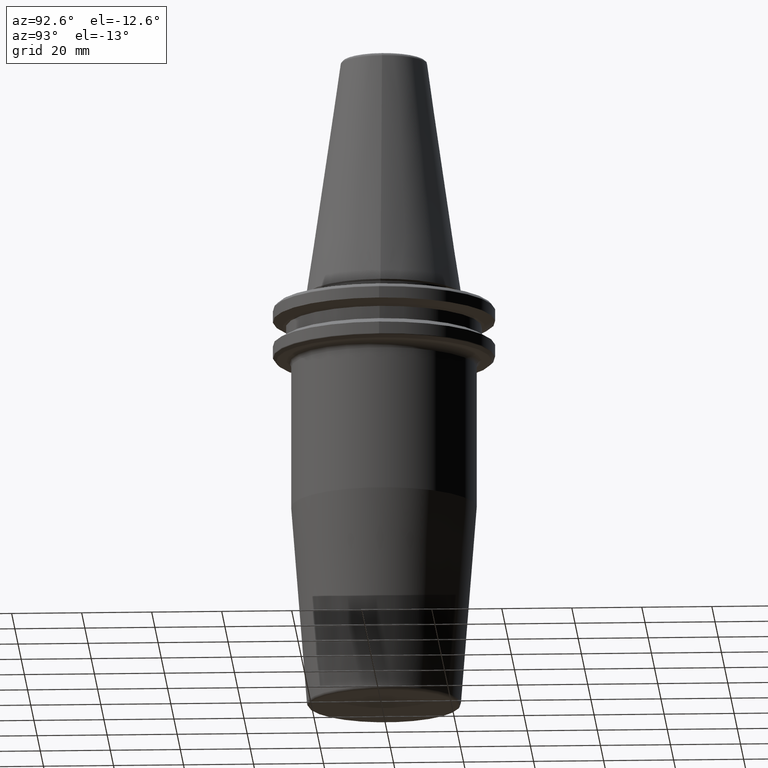
[diagram: clean part render]
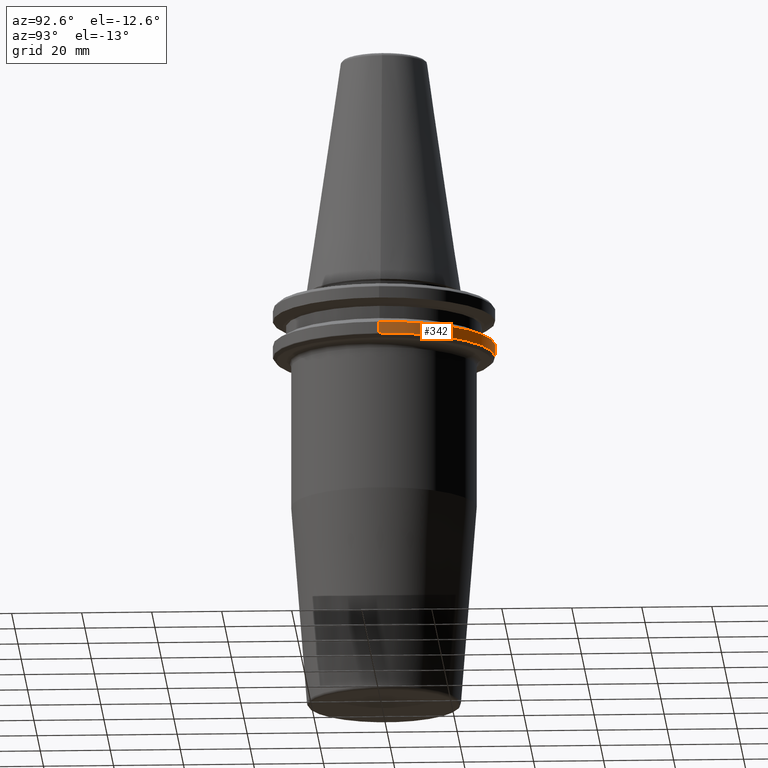
[diagram: same view with one face highlighted and labeled with its STEP entity id]
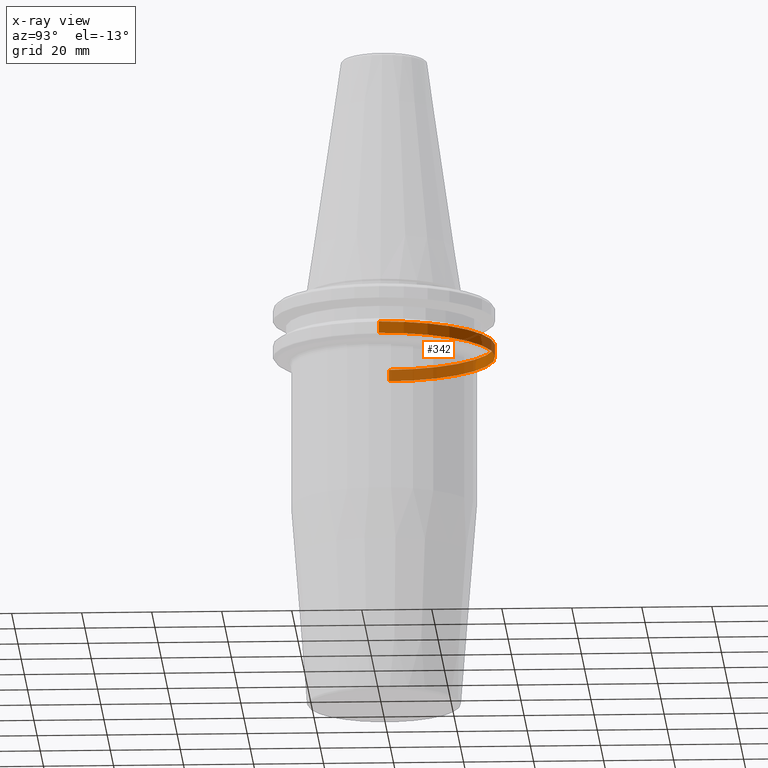
[diagram: x-ray of the same camera — body ghosted, the highlighted face saturated]
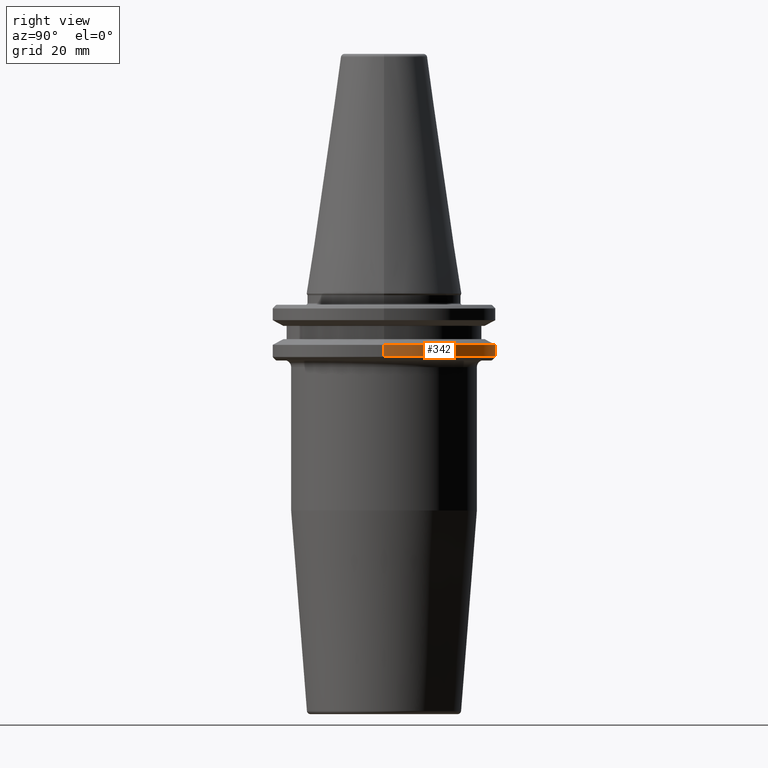
[diagram: same view with one face highlighted and labeled with its STEP entity id]
A machine part, auxiliary view. The second image highlights one B-rep face of the part: STEP entity #342.
The next image is the same camera in x-ray: the body ghosted, the highlighted face saturated — about 39% of this face is hidden behind the body in this view.
A second angle (right view) of the same face is appended — the face is thin or edge-on in the first view.
In plain terms, the highlighted cylindrical surface (partial cylindrical patch) has radius 31.75 mm, axis along (-0, -0, 1).
Its self-contained STEP definition (entity closure, byte-faithful):
#40 = CIRCLE ( 'NONE', #934, 31.75000000000000000 ) ;
#48 = DIRECTION ( 'NONE',  ( -0.0000000000000000000, -0.0000000000000000000, 1.000000000000000000 ) ) ;
#128 = AXIS2_PLACEMENT_3D ( 'NONE', #265, #938, #537 ) ;
#265 = CARTESIAN_POINT ( 'NONE',  ( 0.0000000000000000000, 0.0000000000000000000, 113.5216080541959500 ) ) ;
#276 = DIRECTION ( 'NONE',  ( -0.0000000000000000000, -0.0000000000000000000, 1.000000000000000000 ) ) ;
#314 = ORIENTED_EDGE ( 'NONE', *, *, #571, .F. ) ;
#342 = ADVANCED_FACE ( 'NONE', ( #807 ), #1027, .T. ) ;
#358 = CIRCLE ( 'NONE', #613, 31.75000000000000000 ) ;
#388 = DIRECTION ( 'NONE',  ( 1.000000000000000000, 0.0000000000000000000, 0.0000000000000000000 ) ) ;
#394 = VECTOR ( 'NONE', #276, 1000.000000000000000 ) ;
#469 = DIRECTION ( 'NONE',  ( 1.000000000000000000, 0.0000000000000000000, 0.0000000000000000000 ) ) ;
#514 = EDGE_CURVE ( 'NONE', #720, #1136, #649, .T. ) ;
#535 = EDGE_CURVE ( 'NONE', #579, #1090, #1142, .T. ) ;
#537 = DIRECTION ( 'NONE',  ( 1.000000000000000000, 0.0000000000000000000, 0.0000000000000000000 ) ) ;
#540 = EDGE_CURVE ( 'NONE', #720, #579, #358, .T. ) ;
#571 = EDGE_CURVE ( 'NONE', #1136, #1090, #40, .T. ) ;
#579 = VERTEX_POINT ( 'NONE', #986 ) ;
#613 = AXIS2_PLACEMENT_3D ( 'NONE', #955, #1218, #469 ) ;
#649 = LINE ( 'NONE', #690, #394 ) ;
#654 = CARTESIAN_POINT ( 'NONE',  ( 31.75000000000000000, 0.0000000000000000000, -14.62183664205671200 ) ) ;
#682 = EDGE_LOOP ( 'NONE', ( #696, #936, #314, #839 ) ) ;
#690 = CARTESIAN_POINT ( 'NONE',  ( 31.75000000000000000, 0.0000000000000000000, 113.5216080541959500 ) ) ;
#696 = ORIENTED_EDGE ( 'NONE', *, *, #540, .T. ) ;
#720 = VERTEX_POINT ( 'NONE', #989 ) ;
#750 = CARTESIAN_POINT ( 'NONE',  ( -31.75000000000000000, 3.888253587292846500E-015, 113.5216080541959500 ) ) ;
#776 = DIRECTION ( 'NONE',  ( -0.0000000000000000000, -0.0000000000000000000, 1.000000000000000000 ) ) ;
#782 = CARTESIAN_POINT ( 'NONE',  ( 0.0000000000000000000, 0.0000000000000000000, -14.62183664205671200 ) ) ;
#807 = FACE_OUTER_BOUND ( 'NONE', #682, .T. ) ;
#839 = ORIENTED_EDGE ( 'NONE', *, *, #514, .F. ) ;
#883 = VECTOR ( 'NONE', #48, 1000.000000000000000 ) ;
#934 = AXIS2_PLACEMENT_3D ( 'NONE', #782, #776, #388 ) ;
#936 = ORIENTED_EDGE ( 'NONE', *, *, #535, .T. ) ;
#938 = DIRECTION ( 'NONE',  ( -0.0000000000000000000, -0.0000000000000000000, 1.000000000000000000 ) ) ;
#955 = CARTESIAN_POINT ( 'NONE',  ( 0.0000000000000000000, 0.0000000000000000000, -17.93431457505076300 ) ) ;
#986 = CARTESIAN_POINT ( 'NONE',  ( -31.75000000000000000, 3.888253587292846500E-015, -17.93431457505076300 ) ) ;
#989 = CARTESIAN_POINT ( 'NONE',  ( 31.75000000000000000, 0.0000000000000000000, -17.93431457505076300 ) ) ;
#1027 = CYLINDRICAL_SURFACE ( 'NONE', #128, 31.75000000000000000 ) ;
#1090 = VERTEX_POINT ( 'NONE', #1203 ) ;
#1136 = VERTEX_POINT ( 'NONE', #654 ) ;
#1142 = LINE ( 'NONE', #750, #883 ) ;
#1203 = CARTESIAN_POINT ( 'NONE',  ( -31.75000000000000000, 3.888253587292846500E-015, -14.62183664205671200 ) ) ;
#1218 = DIRECTION ( 'NONE',  ( -0.0000000000000000000, -0.0000000000000000000, 1.000000000000000000 ) ) ;